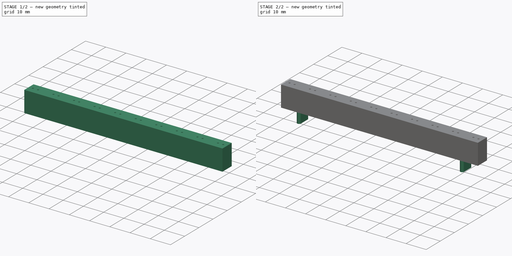
[diagram: build sequence overview — one tinted view per stage of 2, left to right]
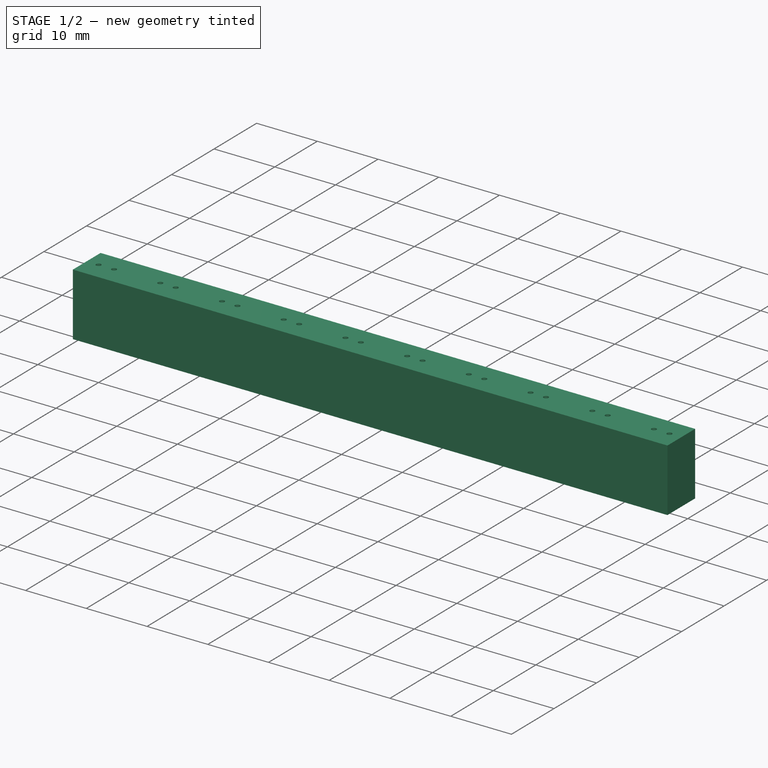
[diagram: stage 1 of 2 — iso view after this stage's code; geometry added in this stage tinted green]
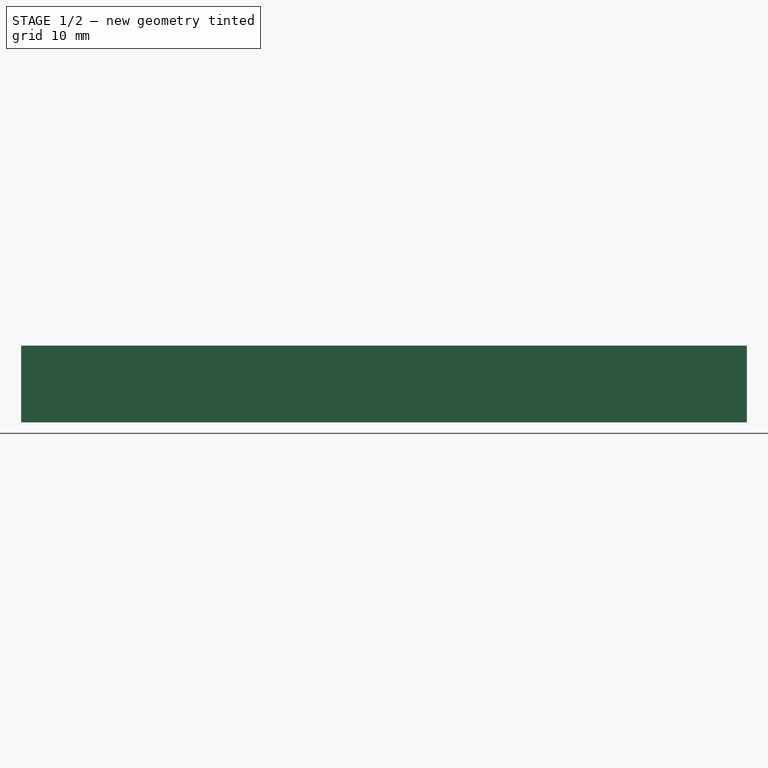
[diagram: stage 1 of 2 — front view after this stage's code; geometry added in this stage tinted green]
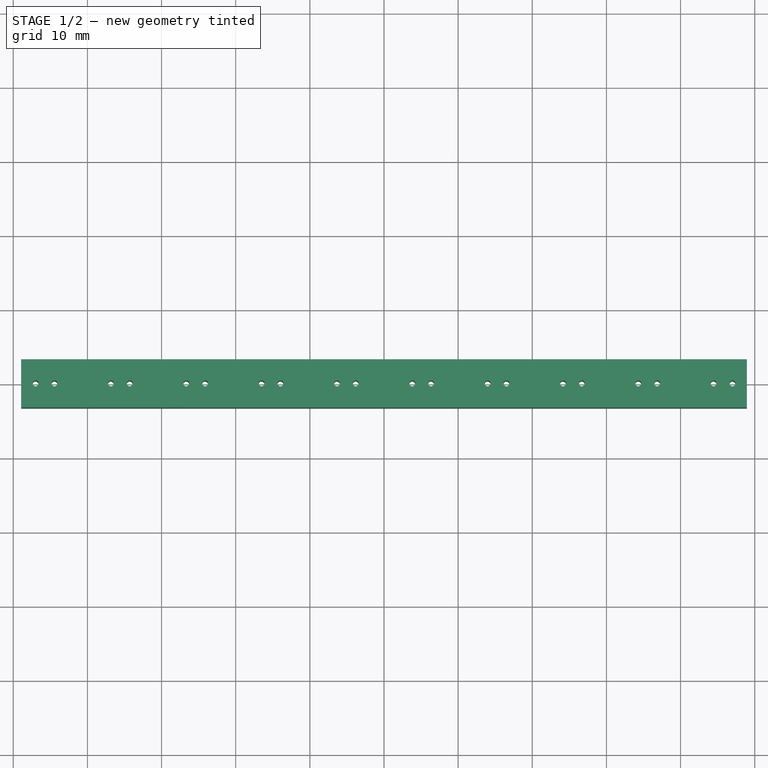
[diagram: stage 1 of 2 — top view after this stage's code; geometry added in this stage tinted green]
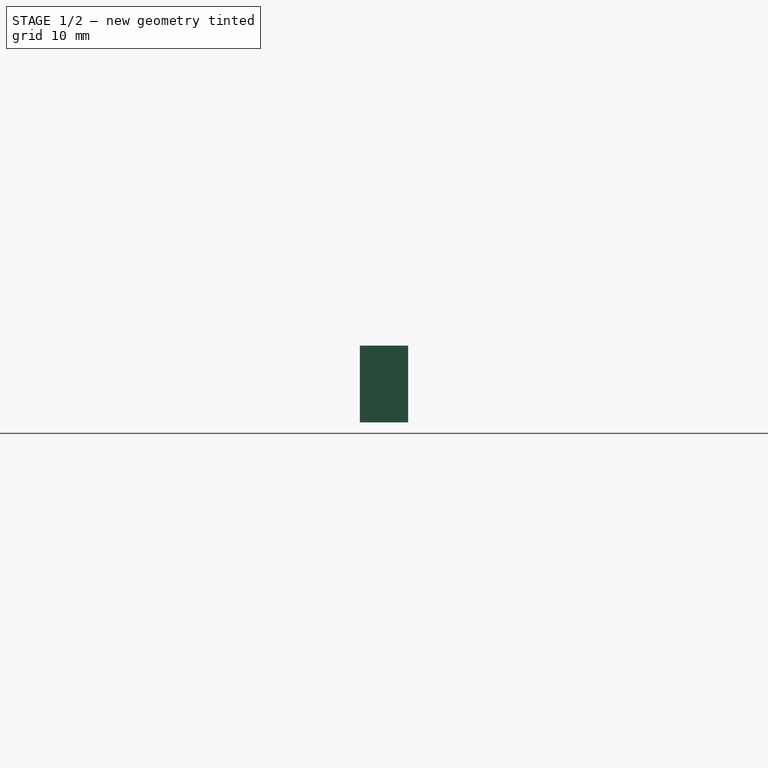
[diagram: stage 1 of 2 — right view after this stage's code; geometry added in this stage tinted green]
FCSTD DOCUMENT  (FreeCAD 0.19R24276 (Git))
Label: spacer-led-lcd
License: All rights reserved
LicenseURL: http://en.wikipedia.org/wiki/All_rights_reserved
objects: Sketcher::SketchObject×3, PartDesign::Pad×2, PartDesign::Pocket×1, PartDesign::Body×1
note: 10 computed .brp shape members not serialized (recipe doc carries the construction recipe); baked Part::Feature solids carry a one-line shape summary decoded from their .brp

FEATURE [Sketcher::SketchObject] Sketch  label="base"
  FullyConstrained = true
  MapMode = 5
  Support = -> [XY_Plane]
  sketch-geometry (4):
    g0: LineSegment StartX=-48.945 StartY=3.25 StartZ=0 EndX=48.945 EndY=3.25 EndZ=0
    g1: LineSegment StartX=48.945 StartY=3.25 StartZ=0 EndX=48.945 EndY=-3.25 EndZ=0
    g2: LineSegment StartX=48.945 StartY=-3.25 StartZ=0 EndX=-48.945 EndY=-3.25 EndZ=0
    g3: LineSegment StartX=-48.945 StartY=-3.25 StartZ=0 EndX=-48.945 EndY=3.25 EndZ=0
  constraints (12):
    c: Coincident(g0,g1)
    c: Coincident(g1,g2)
    c: Coincident(g2,g3)
    c: Coincident(g3,g0)
    c: Horizontal(g0)
    c: Horizontal(g2)
    c: Vertical(g1)
    c: Vertical(g3)
    c: DistanceY(g-1,g0) = 3.25
    c: DistanceY(g2,g-1) = 3.25
    c: DistanceX(g0,g-1) = 48.945
    c: DistanceX(g-1,g0) = 48.945
FEATURE [PartDesign::Pad] Pad  label="base_pad"
  Direction = (1,1,1)
  Length = 10.35
  Length2 = 100
  Profile = -> Sketch
  Type = 0
FEATURE [Sketcher::SketchObject] Sketch001  label="hole"
  FullyConstrained = true
  MapMode = 5
  Placement = pos=(0,0,10.35) rot=(0,0,1;0rad)
  Support = -> [Pad]
  sketch-geometry (20):
    g0: Circle CenterX=3.81 CenterY=0 CenterZ=0 NormalX=0 NormalY=0 NormalZ=1 AngleXU=0 Radius=0.4
    g1: Circle CenterX=6.35 CenterY=0 CenterZ=0 NormalX=0 NormalY=0 NormalZ=1 AngleXU=0 Radius=0.4
    g2: Circle CenterX=-16.51 CenterY=0 CenterZ=0 NormalX=0 NormalY=0 NormalZ=1 AngleXU=0 Radius=0.4
    g3: Circle CenterX=-13.97 CenterY=0 CenterZ=0 NormalX=0 NormalY=0 NormalZ=1 AngleXU=0 Radius=0.4
    g4: Circle CenterX=-34.29 CenterY=0 CenterZ=0 NormalX=0 NormalY=0 NormalZ=1 AngleXU=0 Radius=0.4
    g5: Circle CenterX=-36.83 CenterY=0 CenterZ=0 NormalX=0 NormalY=0 NormalZ=1 AngleXU=0 Radius=0.4
    g6: Circle CenterX=13.97 CenterY=0 CenterZ=0 NormalX=0 NormalY=0 NormalZ=1 AngleXU=0 Radius=0.4
    g7: Circle CenterX=16.51 CenterY=0 CenterZ=0 NormalX=0 NormalY=0 NormalZ=1 AngleXU=0 Radius=0.4
    g8: Circle CenterX=24.13 CenterY=0 CenterZ=0 NormalX=0 NormalY=0 NormalZ=1 AngleXU=0 Radius=0.4
    g9: Circle CenterX=26.67 CenterY=0 CenterZ=0 NormalX=0 NormalY=0 NormalZ=1 AngleXU=0 Radius=0.4
    g10: Circle CenterX=34.29 CenterY=0 CenterZ=0 NormalX=0 NormalY=0 NormalZ=1 AngleXU=0 Radius=0.4
    g11: Circle CenterX=36.83 CenterY=0 CenterZ=0 NormalX=0 NormalY=0 NormalZ=1 AngleXU=0 Radius=0.4
    g12: Circle CenterX=44.45 CenterY=0 CenterZ=0 NormalX=0 NormalY=0 NormalZ=1 AngleXU=0 Radius=0.4
    g13: Circle CenterX=46.99 CenterY=0 CenterZ=0 NormalX=0 NormalY=0 NormalZ=1 AngleXU=0 Radius=0.4
    g14: Circle CenterX=-46.99 CenterY=0 CenterZ=0 NormalX=0 NormalY=0 NormalZ=1 AngleXU=0 Radius=0.4
    g15: Circle CenterX=-44.45 CenterY=0 CenterZ=0 NormalX=0 NormalY=0 NormalZ=1 AngleXU=0 Radius=0.4
    g16: Circle CenterX=-26.67 CenterY=0 CenterZ=0 NormalX=0 NormalY=0 NormalZ=1 AngleXU=0 Radius=0.4
    g17: Circle CenterX=-24.13 CenterY=0 CenterZ=0 NormalX=0 NormalY=0 NormalZ=1 AngleXU=0 Radius=0.4
    g18: Circle CenterX=-6.35 CenterY=0 CenterZ=0 NormalX=0 NormalY=0 NormalZ=1 AngleXU=0 Radius=0.4
    g19: Circle CenterX=-3.81 CenterY=0 CenterZ=0 NormalX=0 NormalY=0 NormalZ=1 AngleXU=0 Radius=0.4
  constraints (60):
    c: PointOnObject(g0,g-1)
    c: PointOnObject(g1,g-1)
    c: Radius(g0) = 0.4
    c: Radius(g1) = 0.4
    c: PointOnObject(g2,g-1)
    c: PointOnObject(g3,g-1)
    c: Radius(g2) = 0.4
    c: Radius(g3) = 0.4
    c: DistanceX(g2,g3) = 2.54
    c: PointOnObject(g4,g-1)
    c: PointOnObject(g5,g-1)
    c: Radius(g4) = 0.4
    c: Radius(g5) = 0.4
    c: DistanceX(g5,g4) = 2.54
    c: PointOnObject(g6,g-1)
    c: PointOnObject(g7,g-1)
    c: Radius(g6) = 0.4
    c: Radius(g7) = 0.4
    c: DistanceX(g6,g7) = 2.54
    c: DistanceX(g1,g6) = 7.62
    c: PointOnObject(g8,g-1)
    c: PointOnObject(g9,g-1)
    c: Radius(g8) = 0.4
    c: Radius(g9) = 0.4
    c: DistanceX(g8,g9) = 2.54
    c: DistanceX(g7,g8) = 7.62
    c: PointOnObject(g10,g-1)
    c: PointOnObject(g11,g-1)
    c: Radius(g10) = 0.4
    c: Radius(g11) = 0.4
    c: DistanceX(g10,g11) = 2.54
    c: DistanceX(g9,g10) = 7.62
    c: PointOnObject(g12,g-1)
    c: PointOnObject(g13,g-1)
    c: Radius(g12) = 0.4
    c: Radius(g13) = 0.4
    c: DistanceX(g12,g13) = 2.54
    c: DistanceX(g11,g12) = 7.62
    c: DistanceX(g0,g1) = 2.54
    c: PointOnObject(g14,g-1)
    c: PointOnObject(g15,g-1)
    c: Radius(g15) = 0.4
    c: Radius(g14) = 0.4
    c: DistanceX(g14,g15) = 2.54
    c: DistanceX(g15,g5) = 7.62
    c: DistanceX(g14,g-1) = 46.99
    c: PointOnObject(g16,g-1)
    c: PointOnObject(g17,g-1)
    c: Radius(g16) = 0.4
    c: Radius(g17) = 0.4
    c: DistanceX(g16,g17) = 2.54
    c: DistanceX(g4,g16) = 7.62
    c: DistanceX(g17,g2) = 7.62
    c: PointOnObject(g18,g-1)
    c: PointOnObject(g19,g-1)
    c: Radius(g18) = 0.4
    c: Radius(g19) = 0.4
    c: DistanceX(g18,g19) = 2.54
    c: DistanceX(g3,g18) = 7.62
    c: DistanceX(g19,g0) = 7.62
FEATURE [PartDesign::Pocket] Pocket  label="hole_pocket"
  BaseFeature = -> Pad
  Length = 70
  Length2 = 100
  Profile = -> Sketch001
  Type = 0
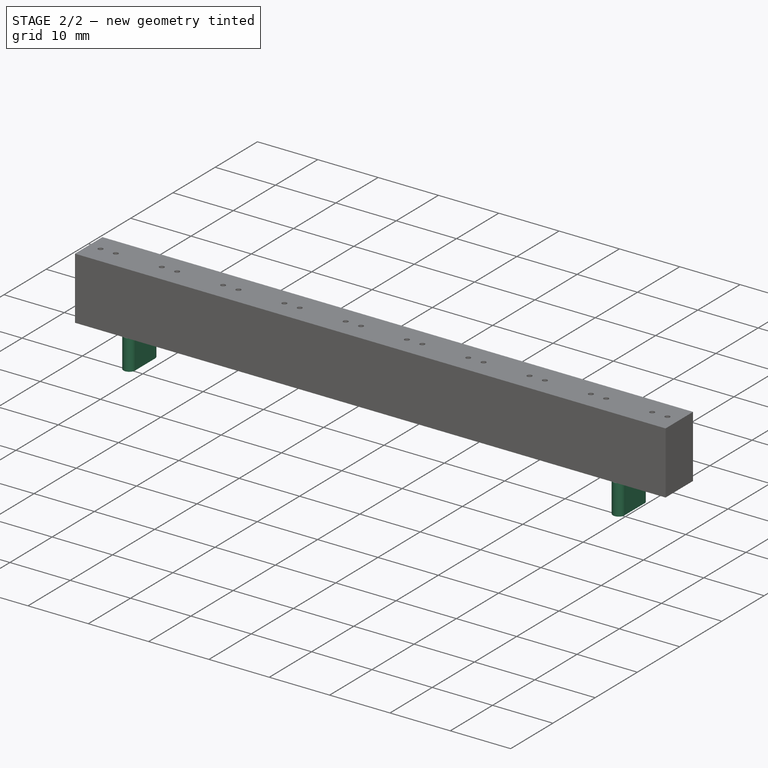
[diagram: stage 2 of 2 — iso view after this stage's code; geometry added in this stage tinted green]
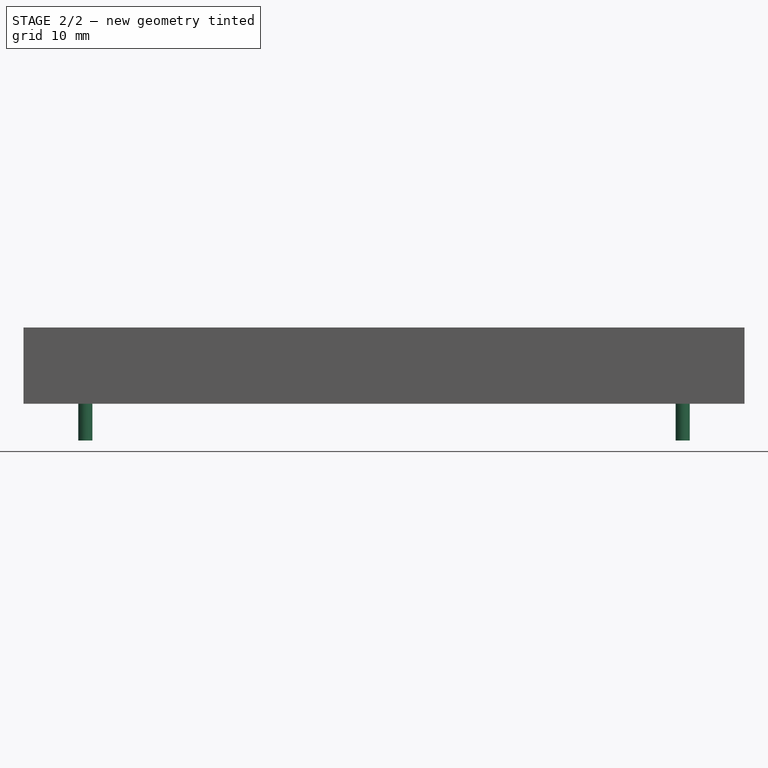
[diagram: stage 2 of 2 — front view after this stage's code; geometry added in this stage tinted green]
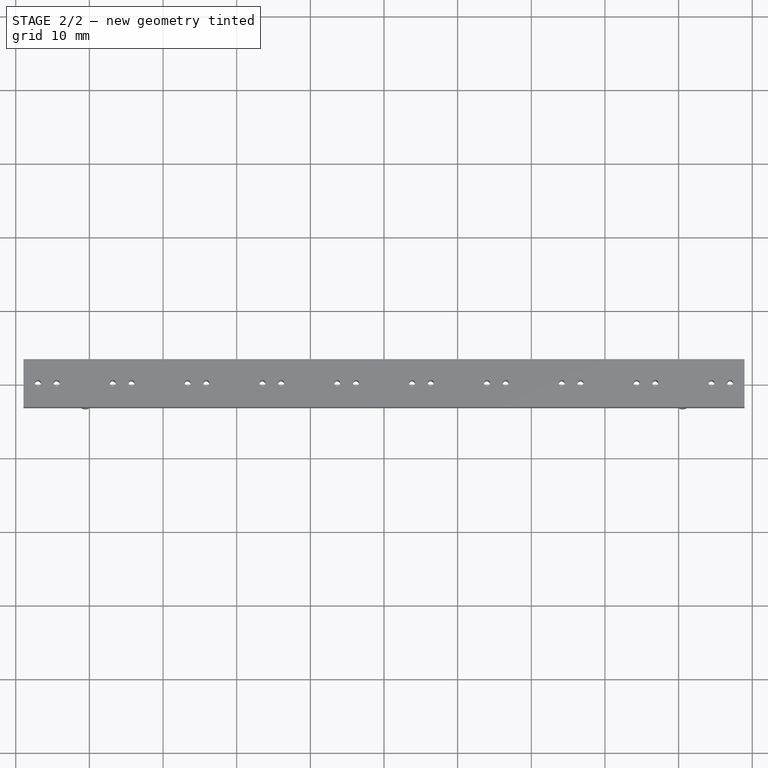
[diagram: stage 2 of 2 — top view after this stage's code; geometry added in this stage tinted green]
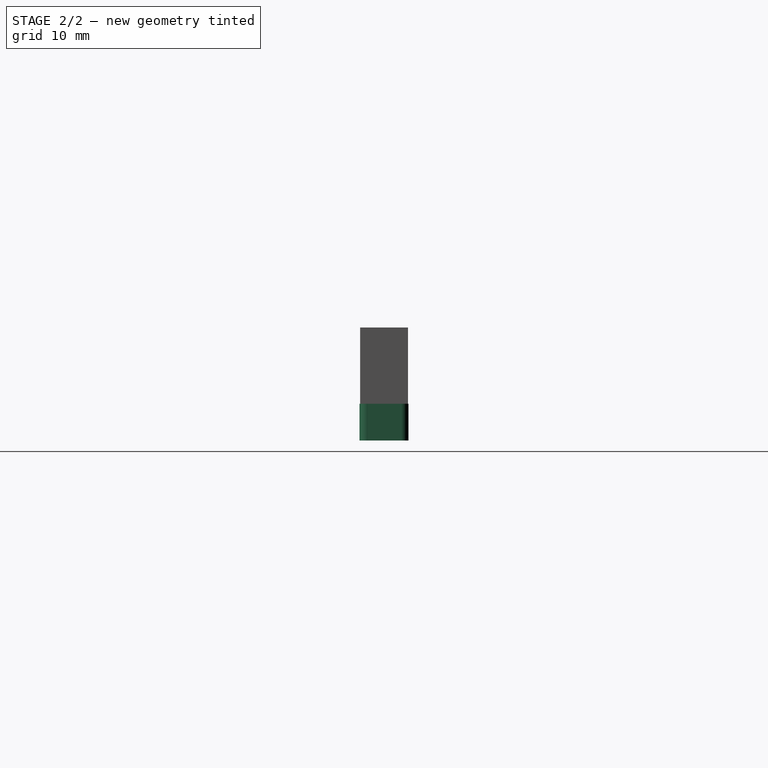
[diagram: stage 2 of 2 — right view after this stage's code; geometry added in this stage tinted green]
FEATURE [Sketcher::SketchObject] Sketch002  label="holder"
  FullyConstrained = true
  MapMode = 5
  Placement = pos=(0,0,0) rot=(1,0,0;3.14159rad)
  Support = -> [Pocket]
  sketch-geometry (8):
    g0: LineSegment StartX=-39.61 StartY=2.2225 StartZ=0 EndX=-39.61 EndY=-2.22 EndZ=0
    g1: LineSegment StartX=-41.51 StartY=-2.22 StartZ=0 EndX=-41.51 EndY=2.22 EndZ=0
    g2: LineSegment StartX=41.51 StartY=2.22 StartZ=0 EndX=41.51 EndY=-2.22 EndZ=0
    g3: LineSegment StartX=39.61 StartY=-2.22 StartZ=0 EndX=39.61 EndY=2.22 EndZ=0
    g4: ArcOfCircle CenterX=-40.5602 CenterY=2.35945 CenterZ=0 NormalX=0 NormalY=0 NormalZ=1 AngleXU=0 Radius=0.96 StartAngle=6.14004 EndAngle=9.57055
    g5: ArcOfCircle CenterX=-40.56 CenterY=-2.3582 CenterZ=0 NormalX=0 NormalY=0 NormalZ=1 AngleXU=0 Radius=0.96 StartAngle=2.99713 EndAngle=6.42765
    g6: ArcOfCircle CenterX=40.56 CenterY=2.3582 CenterZ=0 NormalX=0 NormalY=0 NormalZ=1 AngleXU=0 Radius=0.96 StartAngle=6.13872 EndAngle=9.56924
    g7: ArcOfCircle CenterX=40.56 CenterY=-2.3582 CenterZ=0 NormalX=0 NormalY=0 NormalZ=1 AngleXU=0 Radius=0.96 StartAngle=2.99713 EndAngle=6.42765
  constraints (28):
    c: Vertical(g0)
    c: Vertical(g1)
    c: DistanceX(g1,g0) = 1.9
    c: DistanceY(g-1,g0) = 2.2225
    c: DistanceY(g0,g-1) = 2.22
    c: DistanceX(g1,g-1) = 41.51
    c: Vertical(g2)
    c: Vertical(g3)
    c: DistanceX(g3,g2) = 1.9
    c: DistanceY(g-1,g3) = 2.22
    c: DistanceY(g3,g-1) = 2.22
    c: DistanceX(g-1,g2) = 41.51
    c: DistanceY(g1,g-1) = 2.22
    c: DistanceY(g-1,g1) = 2.22
    c: Coincident(g4,g1)
    c: Coincident(g4,g0)
    c: Coincident(g5,g1)
    c: Coincident(g5,g0)
    c: DistanceY(g-1,g2) = 2.22
    c: DistanceY(g2,g-1) = 2.22
    c: Coincident(g6,g3)
    c: Coincident(g6,g2)
    c: Coincident(g7,g3)
    c: Coincident(g7,g2)
    c: Radius(g7) = 0.96
    c: Radius(g6) = 0.96
    c: Radius(g4) = 0.96
    c: Radius(g5) = 0.96
FEATURE [PartDesign::Pad] Pad001  label="holder_pad"
  BaseFeature = -> Pocket
  Direction = (1,1,1)
  Length = 5
  Length2 = 100
  Profile = -> Sketch002
  Type = 0
FEATURE [PartDesign::Body] Body
  Group = -> [Sketch,Pad,Sketch001,Pocket,Sketch002,Pad001]
  Origin = -> Origin
  Tip = -> Pad001
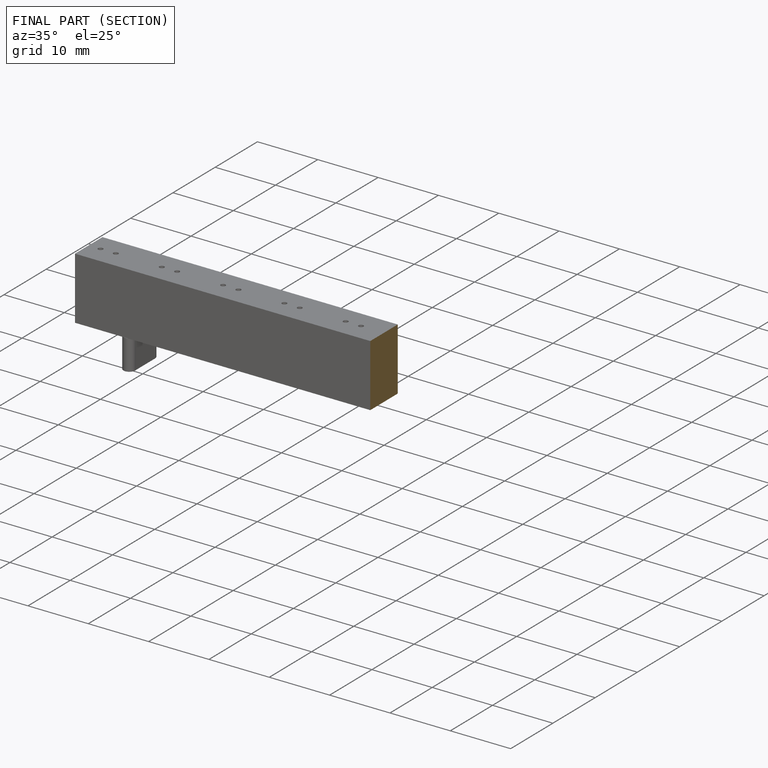
[diagram: finished part — half-section view (interior)]
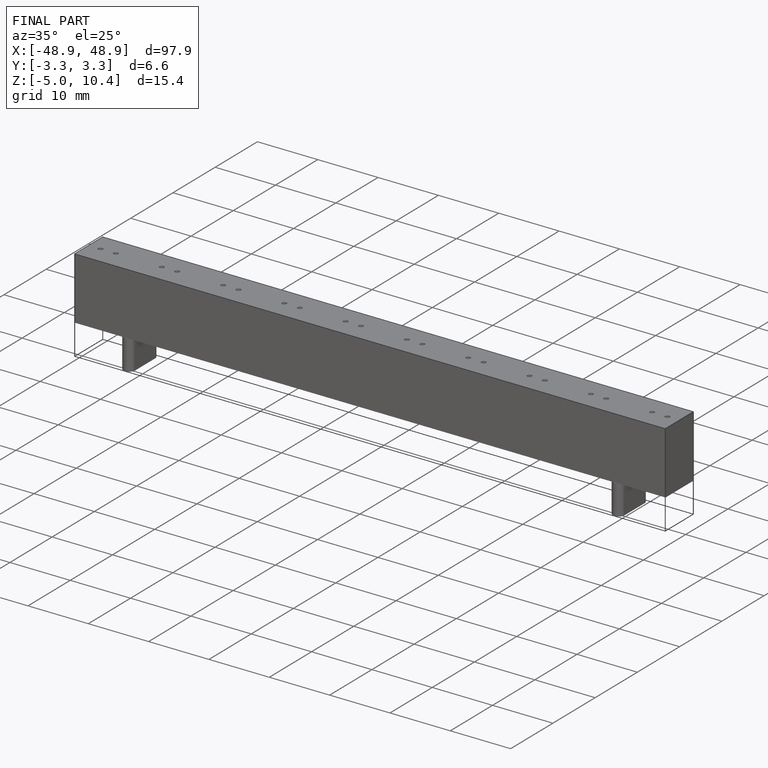
[diagram: finished part — iso view with bounding-box wireframe]
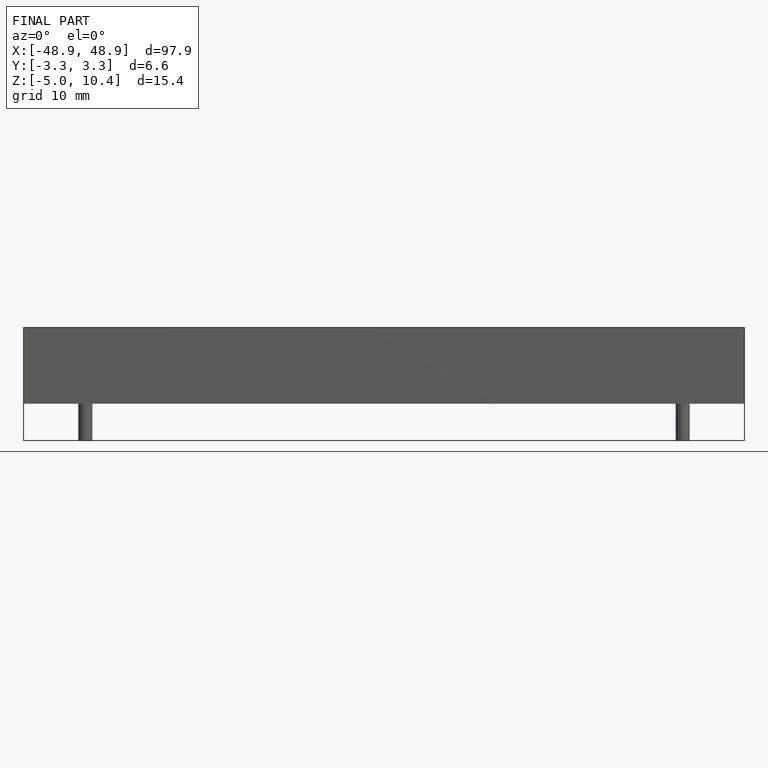
[diagram: finished part — front view with bounding-box wireframe]
